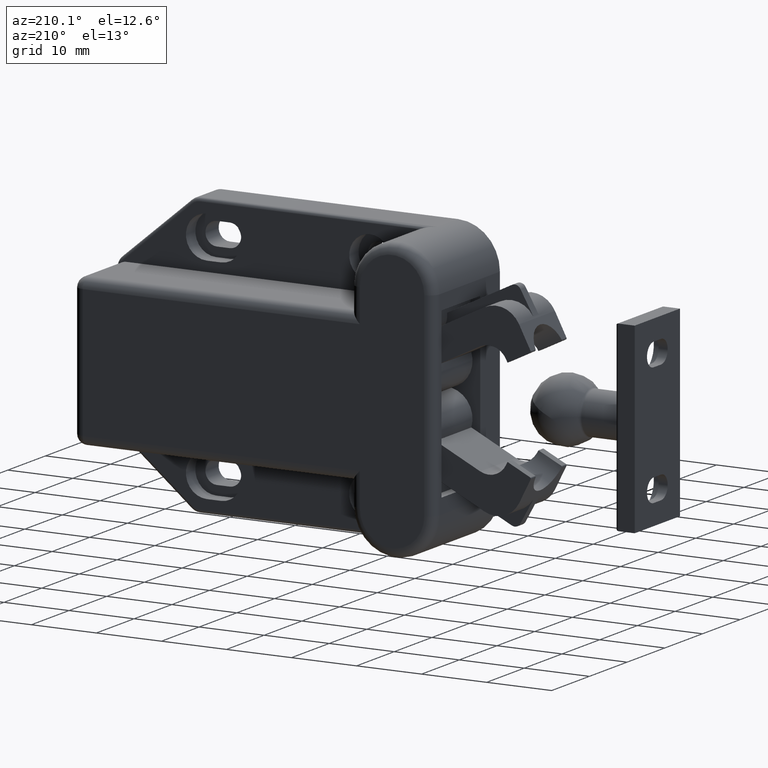
[diagram: clean part render]
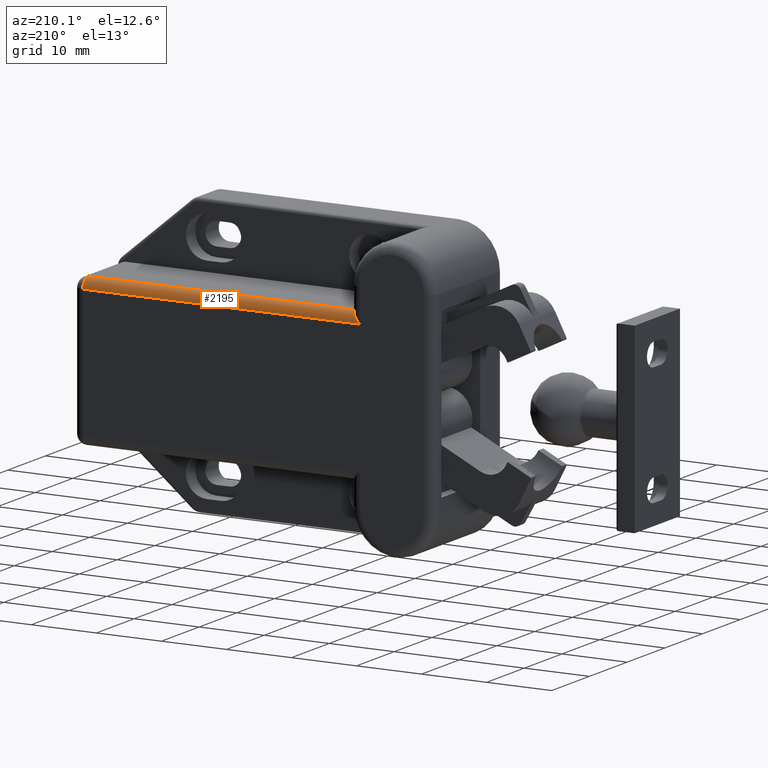
[diagram: same view with one face highlighted and labeled with its STEP entity id]
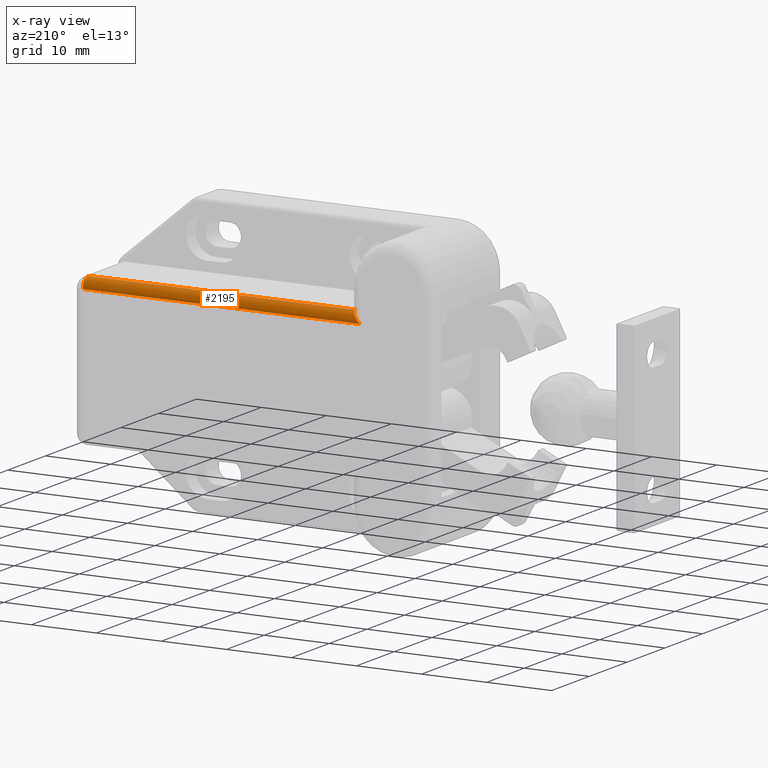
[diagram: x-ray of the same camera — body ghosted, the highlighted face saturated]
A machine part, auxiliary view. The second image highlights one B-rep face of the part: STEP entity #2195.
The next image is the same camera in x-ray: the body ghosted, the highlighted face saturated — about 0% of this face is hidden behind the body in this view.
In plain terms, the highlighted cylindrical surface (edge-blend (fillet) strip) has radius 1.5 mm, axis along (1, -0, -0).
Its self-contained STEP definition (entity closure, byte-faithful):
#69=ELLIPSE('',#2356,2.12132034355964,1.5);
#175=LINE('',#3415,#371);
#176=LINE('',#3419,#372);
#371=VECTOR('',#2678,41.1);
#372=VECTOR('',#2681,42.6);
#553=CYLINDRICAL_SURFACE('',#2354,1.5);
#617=FACE_OUTER_BOUND('',#748,.T.);
#748=EDGE_LOOP('',(#1600,#1601,#1602,#1603));
#910=CIRCLE('',#2355,1.5);
#1030=VERTEX_POINT('',#3413);
#1031=VERTEX_POINT('',#3414);
#1032=VERTEX_POINT('',#3416);
#1033=VERTEX_POINT('',#3418);
#1256=EDGE_CURVE('',#1030,#1031,#175,.T.);
#1257=EDGE_CURVE('',#1031,#1032,#910,.T.);
#1258=EDGE_CURVE('',#1032,#1033,#176,.T.);
#1259=EDGE_CURVE('',#1033,#1030,#69,.T.);
#1600=ORIENTED_EDGE('',*,*,#1256,.T.);
#1601=ORIENTED_EDGE('',*,*,#1257,.T.);
#1602=ORIENTED_EDGE('',*,*,#1258,.T.);
#1603=ORIENTED_EDGE('',*,*,#1259,.T.);
#2195=ADVANCED_FACE('',(#617),#553,.T.);
#2354=AXIS2_PLACEMENT_3D('',#3412,#2676,#2677);
#2355=AXIS2_PLACEMENT_3D('',#3417,#2679,#2680);
#2356=AXIS2_PLACEMENT_3D('',#3420,#2682,#2683);
#2676=DIRECTION('center_axis',(6.48305415839507E-16,-1.,0.));
#2677=DIRECTION('ref_axis',(-0.707106781186546,0.,0.707106781186549));
#2678=DIRECTION('',(6.48305415839507E-16,-1.,0.));
#2679=DIRECTION('center_axis',(0.,1.,0.));
#2680=DIRECTION('ref_axis',(-1.,0.,0.));
#2681=DIRECTION('',(-6.48305415839507E-16,1.,0.));
#2682=DIRECTION('center_axis',(0.707106781186548,-0.707106781186548,0.));
#2683=DIRECTION('ref_axis',(0.707106781186547,0.707106781186547,0.));
#3412=CARTESIAN_POINT('Origin',(-10.,18.075,16.));
#3413=CARTESIAN_POINT('',(-11.5,14.85,16.));
#3414=CARTESIAN_POINT('',(-11.5,-26.25,16.));
#3415=CARTESIAN_POINT('',(-11.5,18.075,16.));
#3416=CARTESIAN_POINT('',(-10.,-26.25,17.5));
#3417=CARTESIAN_POINT('Origin',(-10.,-26.25,16.));
#3418=CARTESIAN_POINT('',(-10.,16.35,17.5));
#3419=CARTESIAN_POINT('',(-10.,18.075,17.5));
#3420=CARTESIAN_POINT('Origin',(-10.,16.35,16.));